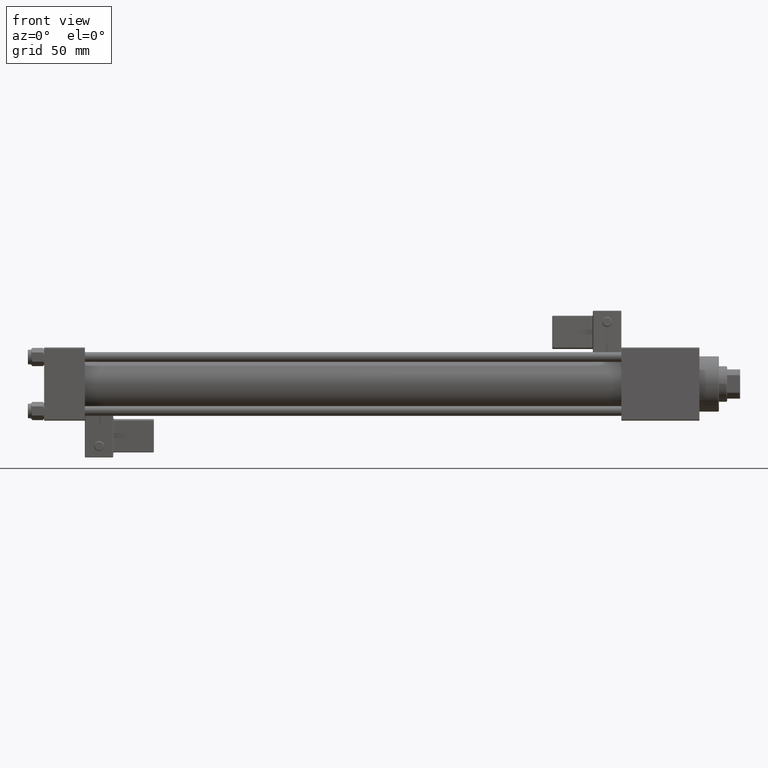
[diagram: clean part render]
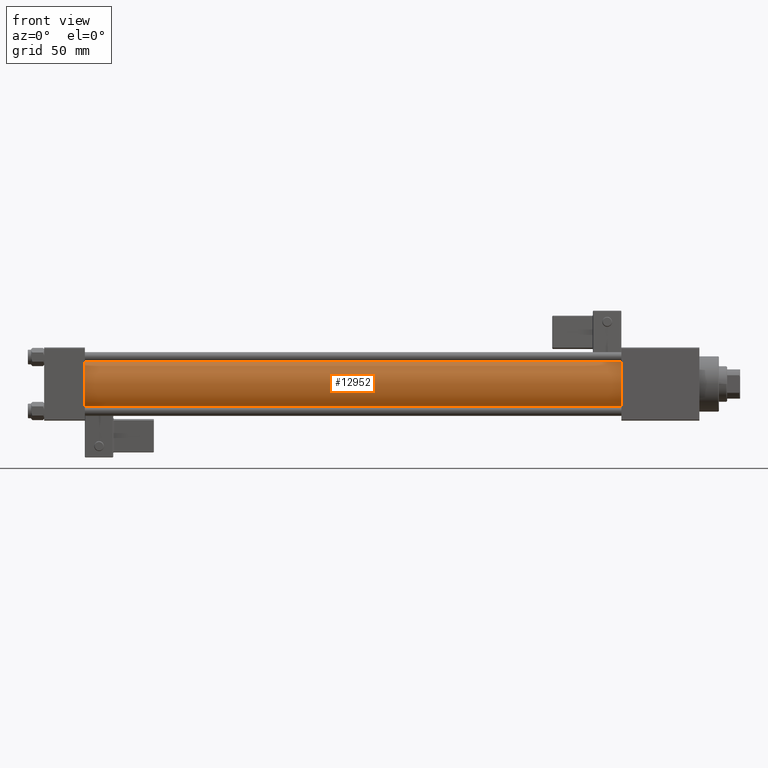
[diagram: same view with one face highlighted and labeled with its STEP entity id]
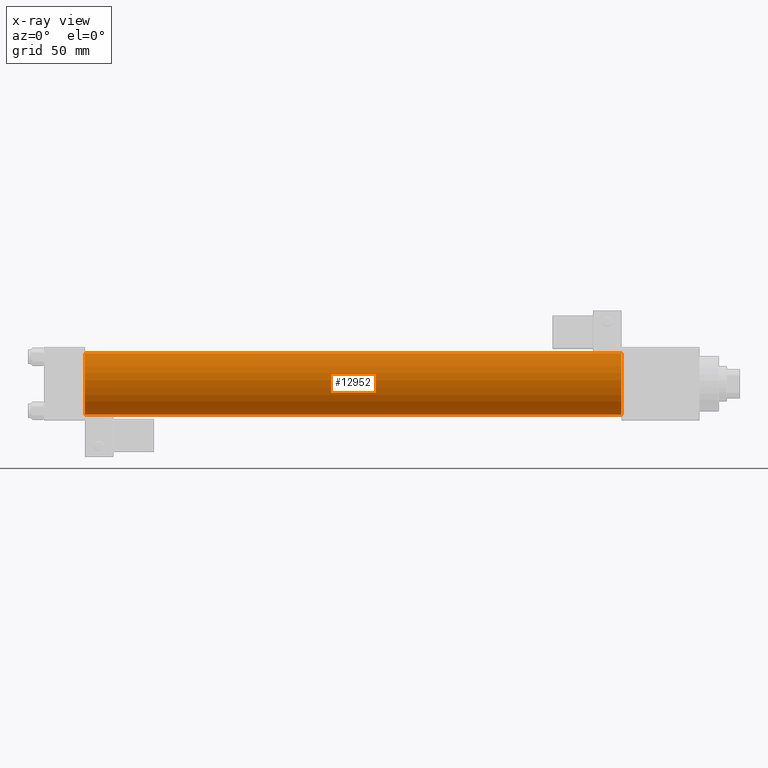
[diagram: x-ray of the same camera — body ghosted, the highlighted face saturated]
A machine part, front view. The second image highlights one B-rep face of the part: STEP entity #12952.
The next image is the same camera in x-ray: the body ghosted, the highlighted face saturated — about 0% of this face is hidden behind the body in this view.
In plain terms, the highlighted cylindrical surface (edge-blend (fillet) strip) has radius 19 mm, axis along (-1, -0, -0).
Its self-contained STEP definition (entity closure, byte-faithful):
#1226 = CARTESIAN_POINT ( 'NONE',  ( 25.00000000000002132, -2.602085213965210642E-15, 0.000000000000000000 ) ) ;
#1236 = VERTEX_POINT ( 'NONE', #45900 ) ;
#1438 = CIRCLE ( 'NONE', #7482, 19.00000000000000000 ) ;
#2149 = CARTESIAN_POINT ( 'NONE',  ( 25.00000000000002132, -2.602085213965210642E-15, 19.00000000000000000 ) ) ;
#4445 = FACE_OUTER_BOUND ( 'NONE', #11033, .T. ) ;
#5837 = ORIENTED_EDGE ( 'NONE', *, *, #8204, .T. ) ;
#7293 = EDGE_CURVE ( 'NONE', #45449, #35259, #30828, .T. ) ;
#7482 = AXIS2_PLACEMENT_3D ( 'NONE', #1226, #18628, #14288 ) ;
#8204 = EDGE_CURVE ( 'NONE', #45449, #23544, #10329, .T. ) ;
#8874 = DIRECTION ( 'NONE',  ( 1.000000000000000000, 0.000000000000000000, 0.000000000000000000 ) ) ;
#9134 = ORIENTED_EDGE ( 'NONE', *, *, #39283, .T. ) ;
#10329 = LINE ( 'NONE', #51362, #48213 ) ;
#10637 = LINE ( 'NONE', #39195, #46813 ) ;
#11033 = EDGE_LOOP ( 'NONE', ( #24634, #35731, #5837, #9134 ) ) ;
#12952 = ADVANCED_FACE ( 'NONE', ( #4445 ), #32476, .T. ) ;
#14288 = DIRECTION ( 'NONE',  ( 0.000000000000000000, 0.000000000000000000, 1.000000000000000000 ) ) ;
#16180 = DIRECTION ( 'NONE',  ( -1.000000000000000000, -0.000000000000000000, -0.000000000000000000 ) ) ;
#18628 = DIRECTION ( 'NONE',  ( 1.000000000000000000, -0.000000000000000000, 0.000000000000000000 ) ) ;
#19961 = EDGE_CURVE ( 'NONE', #35259, #1236, #10637, .T. ) ;
#20855 = CARTESIAN_POINT ( 'NONE',  ( 355.0000000000000568, -2.602085213965210642E-15, 19.00000000000000000 ) ) ;
#23544 = VERTEX_POINT ( 'NONE', #2149 ) ;
#24634 = ORIENTED_EDGE ( 'NONE', *, *, #19961, .F. ) ;
#26897 = DIRECTION ( 'NONE',  ( -1.000000000000000000, -0.000000000000000000, -0.000000000000000000 ) ) ;
#28273 = CARTESIAN_POINT ( 'NONE',  ( 355.0000000000000568, -2.602085213965210642E-15, 0.000000000000000000 ) ) ;
#30828 = CIRCLE ( 'NONE', #34278, 19.00000000000000000 ) ;
#32476 = CYLINDRICAL_SURFACE ( 'NONE', #32763, 19.00000000000000000 ) ;
#32763 = AXIS2_PLACEMENT_3D ( 'NONE', #40920, #16180, #49336 ) ;
#34278 = AXIS2_PLACEMENT_3D ( 'NONE', #28273, #8874, #46127 ) ;
#35259 = VERTEX_POINT ( 'NONE', #38112 ) ;
#35731 = ORIENTED_EDGE ( 'NONE', *, *, #7293, .F. ) ;
#35908 = DIRECTION ( 'NONE',  ( -1.000000000000000000, -0.000000000000000000, -0.000000000000000000 ) ) ;
#38112 = CARTESIAN_POINT ( 'NONE',  ( 355.0000000000000568, -2.752562955852396712E-16, -19.00000000000000000 ) ) ;
#39195 = CARTESIAN_POINT ( 'NONE',  ( 355.0000000000000568, -2.752562955852396712E-16, -19.00000000000000000 ) ) ;
#39283 = EDGE_CURVE ( 'NONE', #23544, #1236, #1438, .T. ) ;
#40920 = CARTESIAN_POINT ( 'NONE',  ( 355.0000000000000568, -2.602085213965210642E-15, 0.000000000000000000 ) ) ;
#45449 = VERTEX_POINT ( 'NONE', #20855 ) ;
#45900 = CARTESIAN_POINT ( 'NONE',  ( 25.00000000000002132, -2.752562955852396712E-16, -19.00000000000000000 ) ) ;
#46127 = DIRECTION ( 'NONE',  ( 0.000000000000000000, 0.000000000000000000, -1.000000000000000000 ) ) ;
#46813 = VECTOR ( 'NONE', #35908, 1000.000000000000000 ) ;
#48213 = VECTOR ( 'NONE', #26897, 1000.000000000000000 ) ;
#49336 = DIRECTION ( 'NONE',  ( 0.000000000000000000, 0.000000000000000000, 1.000000000000000000 ) ) ;
#51362 = CARTESIAN_POINT ( 'NONE',  ( 355.0000000000000568, -2.602085213965210642E-15, 19.00000000000000000 ) ) ;